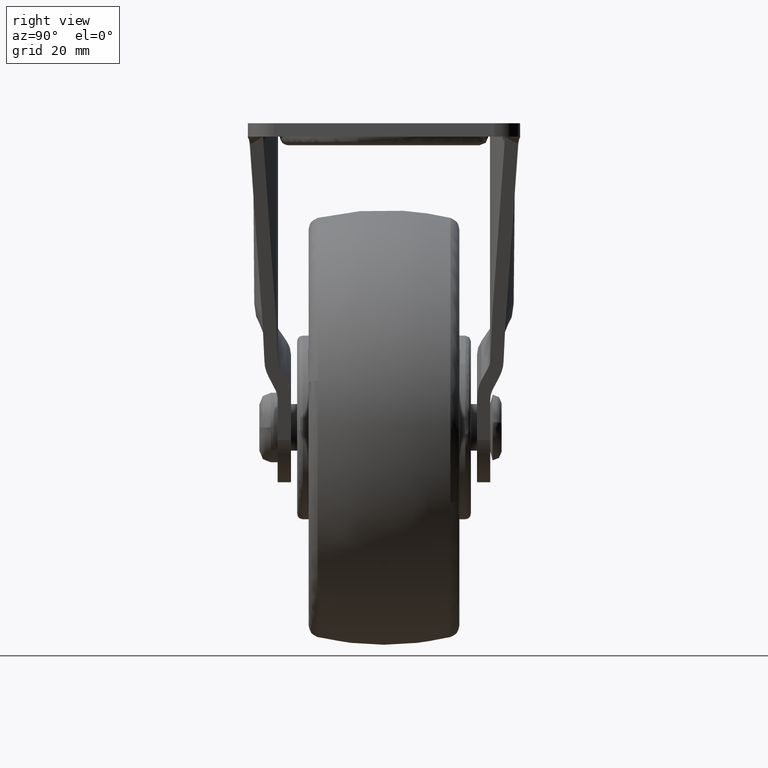
[diagram: clean part render]
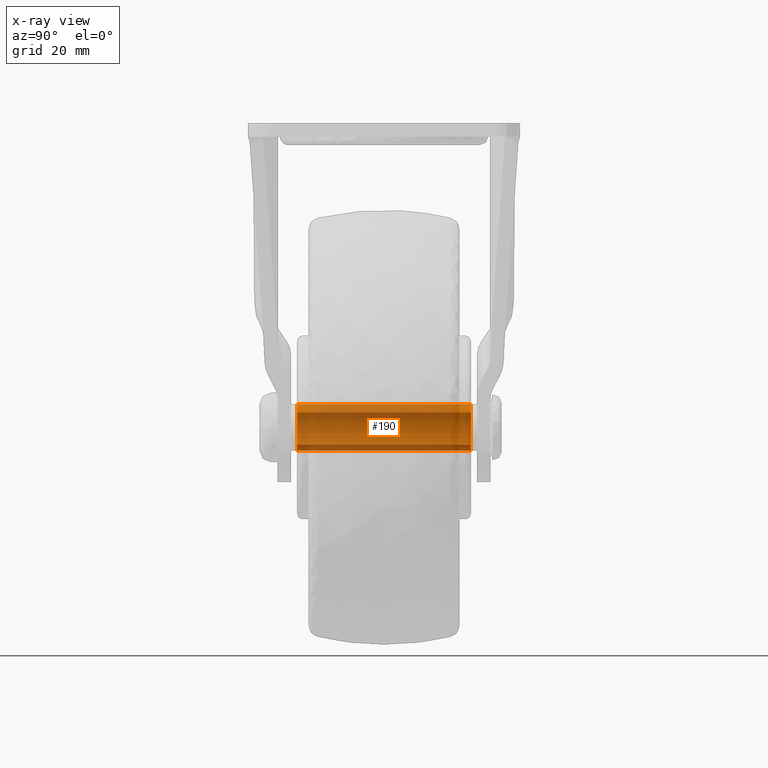
[diagram: x-ray — body ghosted, one internal face saturated and labeled with its STEP entity id]
A machine part, right view, then the same camera in x-ray: the body is ghosted and one INTERNAL B-rep face — a face not visible from any outside direction — is saturated and labeled: STEP entity #190.
In plain terms, the highlighted face is a freeform B-spline surface patch.
Its self-contained STEP definition (entity closure, byte-faithful):
#44=CARTESIAN_POINT('',(3.054222571761859,15.750000000000005,2.582968153528102));
#45=CARTESIAN_POINT('',(2.980299132926059,15.750000000000007,2.670378691349159));
#46=CARTESIAN_POINT('',(2.901497484049150,15.750000000000000,2.753418302775015));
#47=CARTESIAN_POINT('',(0.148079181274134,15.750000000000009,5.654915786824165));
#48=CARTESIAN_POINT('',(-2.753418302775015,15.750000000000000,2.901497484049150));
#49=CARTESIAN_POINT('',(-5.654915786824165,15.750000000000009,0.148079181274134));
#50=CARTESIAN_POINT('',(-2.901497484049150,15.750000000000000,-2.753418302775015));
#51=CARTESIAN_POINT('',(-0.148079181274134,15.750000000000009,-5.654915786824165));
#52=CARTESIAN_POINT('',(2.753418302775015,15.750000000000000,-2.901497484049150));
#53=CARTESIAN_POINT('',(3.054222571761859,-15.768750000000006,2.582968153528102));
#54=CARTESIAN_POINT('',(2.980299132926059,-15.768750000000006,2.670378691349159));
#55=CARTESIAN_POINT('',(2.901497484049150,-15.768750000000001,2.753418302775015));
#56=CARTESIAN_POINT('',(0.148079181274134,-15.768749999999997,5.654915786824165));
#57=CARTESIAN_POINT('',(-2.753418302775015,-15.768750000000001,2.901497484049150));
#58=CARTESIAN_POINT('',(-5.654915786824165,-15.768749999999997,0.148079181274134));
#59=CARTESIAN_POINT('',(-2.901497484049150,-15.768750000000001,-2.753418302775015));
#60=CARTESIAN_POINT('',(-0.148079181274134,-15.768749999999997,-5.654915786824165));
#61=CARTESIAN_POINT('',(2.753418302775015,-15.768750000000001,-2.901497484049150));
#69=(BOUNDED_SURFACE()B_SPLINE_SURFACE(2,1,((#44,#53),(#45,#54),(#46,#55),(#47,#56),(#48,#57),(#49,#58),(#50,#59),(#51,#60),(#52,#61)),.UNSPECIFIED.,.F.,.F.,.U.)B_SPLINE_SURFACE_WITH_KNOTS((3,2,2,2,3),(2,2),(0.0,0.265096679918781,6.892513677888300,13.519930675857820,20.147347673827340),(0.0,31.518750000000011),.UNSPECIFIED.)GEOMETRIC_REPRESENTATION_ITEM()RATIONAL_B_SPLINE_SURFACE(((0.977505800795127,0.977505800795127),(0.988284271247462,0.988284271247462),(1.0,1.0),(0.707106781186548,0.707106781186548),(1.0,1.0),(0.707106781186548,0.707106781186548),(1.0,1.0),(0.707106781186548,0.707106781186548),(1.0,1.0)))REPRESENTATION_ITEM('')SURFACE());
#70=CARTESIAN_POINT('',(3.054222909492389,-15.000000000001441,2.582968297111406));
#71=VERTEX_POINT('',#70);
#72=CARTESIAN_POINT('',(0.0,-15.0,4.0));
#73=VERTEX_POINT('',#72);
#74=CARTESIAN_POINT('',(3.054222909492389,-15.000000000001441,2.582968297111406));
#75=CARTESIAN_POINT('',(2.855561932839918,-15.000000000001330,2.817938760181309));
#76=CARTESIAN_POINT('',(2.350549701419603,-15.000000000001130,3.291648624417635));
#77=CARTESIAN_POINT('',(1.321150353535196,-15.000000000000581,3.848140701675783));
#78=CARTESIAN_POINT('',(0.470631135691064,-15.000000000000240,4.000321127501906));
#79=CARTESIAN_POINT('',(0.0,-15.0,4.0));
#80=B_SPLINE_CURVE_WITH_KNOTS('',3,(#74,#75,#76,#77,#78,#79),.UNSPECIFIED.,.F.,.U.,(4,1,1,4),(0.000000066988274,0.923109344674218,2.063406143314685,3.475233434031685),.UNSPECIFIED.);
#81=EDGE_CURVE('',#71,#73,#80,.T.);
#82=ORIENTED_EDGE('',*,*,#81,.T.);
#83=CARTESIAN_POINT('',(-3.999999999999747,-15.0,-0.000001422114586));
#84=VERTEX_POINT('',#83);
#85=CARTESIAN_POINT('',(0.0,-15.0,4.0));
#86=CARTESIAN_POINT('',(-0.261786649221330,-15.0,4.000030311106098));
#87=CARTESIAN_POINT('',(-0.818113472703123,-15.0,3.945210557005112));
#88=CARTESIAN_POINT('',(-1.540028983150977,-15.0,3.716530060783644));
#89=CARTESIAN_POINT('',(-2.205635413132823,-15.0,3.360714901780175));
#90=CARTESIAN_POINT('',(-2.775950278660583,-14.999999999999989,2.915668423866436));
#91=CARTESIAN_POINT('',(-3.334389285999332,-15.000000000000020,2.268301528082932));
#92=CARTESIAN_POINT('',(-3.847434797148639,-14.999999999999940,1.308753684857870));
#93=CARTESIAN_POINT('',(-4.000428423722541,-15.000000000000091,0.490933353977176));
#94=CARTESIAN_POINT('',(-3.999999999999747,-15.0,-0.000001422114586));
#95=B_SPLINE_CURVE_WITH_KNOTS('',3,(#85,#86,#87,#88,#89,#90,#91,#92,#93,#94),.UNSPECIFIED.,.F.,.U.,(4,1,1,1,1,1,1,4),(0.000000107845151,0.785384164561502,1.669014168319499,2.258107001564493,3.043504478465067,3.828876641769297,4.810686004064900,6.283343778887010),.UNSPECIFIED.);
#96=EDGE_CURVE('',#73,#84,#95,.T.);
#97=ORIENTED_EDGE('',*,*,#96,.T.);
#98=CARTESIAN_POINT('',(0.0,-15.0,-4.0));
#99=VERTEX_POINT('',#98);
#100=CARTESIAN_POINT('',(-3.999999999999747,-15.0,-0.000001422114586));
#101=CARTESIAN_POINT('',(-4.000131415905226,-14.999999999999989,-0.359986068289557));
#102=CARTESIAN_POINT('',(-3.924360075715298,-15.000000000000011,-0.916232165281375));
#103=CARTESIAN_POINT('',(-3.647958216249098,-14.999999999999989,-1.688616519746435));
#104=CARTESIAN_POINT('',(-3.226721670894381,-15.000000000000020,-2.432647580040876));
#105=CARTESIAN_POINT('',(-2.587996737392360,-15.0,-3.103422916757284));
#106=CARTESIAN_POINT('',(-1.865596583772531,-15.000000000000030,-3.560707182614698));
#107=CARTESIAN_POINT('',(-1.047070538680773,-14.999999999999959,-3.899852388201856));
#108=CARTESIAN_POINT('',(-0.425458006456396,-15.000000000000060,-4.000228060278216));
#109=CARTESIAN_POINT('',(0.0,-15.0,-4.0));
#110=B_SPLINE_CURVE_WITH_KNOTS('',3,(#100,#101,#102,#103,#104,#105,#106,#107,#108,#109),.UNSPECIFIED.,.F.,.U.,(4,1,1,1,1,1,1,4),(0.000000109794394,1.079929653352755,1.669013743901721,2.454466620509347,3.632522488957104,4.417966446222109,5.007046871232914,6.283342175792430),.UNSPECIFIED.);
#111=EDGE_CURVE('',#84,#99,#110,.T.);
#112=ORIENTED_EDGE('',*,*,#111,.T.);
#113=CARTESIAN_POINT('',(2.753418188427194,-14.999999999999289,-2.901497103101590));
#114=VERTEX_POINT('',#113);
#115=CARTESIAN_POINT('',(0.0,-15.0,-4.0));
#116=CARTESIAN_POINT('',(0.347986327807645,-14.999999999999901,-4.000093774275655));
#117=CARTESIAN_POINT('',(1.012257891496073,-14.999999999999760,-3.912790498811766));
#118=CARTESIAN_POINT('',(1.959101850552870,-14.999999999999501,-3.534990180155362));
#119=CARTESIAN_POINT('',(2.501074000855855,-14.999999999999350,-3.141120496033962));
#120=CARTESIAN_POINT('',(2.753418188427194,-14.999999999999289,-2.901497103101590));
#121=B_SPLINE_CURVE_WITH_KNOTS('',3,(#115,#116,#117,#118,#119,#120),.UNSPECIFIED.,.F.,.U.,(4,1,1,4),(0.000000036924206,1.043959769321017,1.992984422497684,3.036944154857505),.UNSPECIFIED.);
#122=EDGE_CURVE('',#99,#114,#121,.T.);
#123=ORIENTED_EDGE('',*,*,#122,.T.);
#124=CARTESIAN_POINT('',(2.753418186849582,15.0,-2.901497104598689));
#125=VERTEX_POINT('',#124);
#126=CARTESIAN_POINT('',(2.753418186849582,15.0,-2.901497104598689));
#127=CARTESIAN_POINT('',(2.753418188427194,-14.999999999999289,-2.901497103101590));
#128=QUASI_UNIFORM_CURVE('',1,(#126,#127),.UNSPECIFIED.,.F.,.U.);
#129=EDGE_CURVE('',#125,#114,#128,.T.);
#130=ORIENTED_EDGE('',*,*,#129,.F.);
#131=CARTESIAN_POINT('',(0.0,15.0,-4.0));
#132=VERTEX_POINT('',#131);
#133=CARTESIAN_POINT('',(0.0,15.0,-4.0));
#134=CARTESIAN_POINT('',(0.411281065418479,15.000000000000041,-4.000233382833497));
#135=CARTESIAN_POINT('',(1.012178015002485,14.999999999999920,-3.906442857973365));
#136=CARTESIAN_POINT('',(1.954805351464561,15.000000000000080,-3.530355462710295));
#137=CARTESIAN_POINT('',(2.455247859110659,14.999999999999931,-3.184780186021824));
#138=CARTESIAN_POINT('',(2.753418186849582,15.0,-2.901497104598689));
#139=B_SPLINE_CURVE_WITH_KNOTS('',3,(#133,#134,#135,#136,#137,#138),.UNSPECIFIED.,.F.,.U.,(4,1,1,4),(0.000000036924167,1.233770300398311,1.803173889217264,3.036944152682459),.UNSPECIFIED.);
#140=EDGE_CURVE('',#132,#125,#139,.T.);
#141=ORIENTED_EDGE('',*,*,#140,.F.);
#142=CARTESIAN_POINT('',(-3.999999999999747,15.0,-0.000001422114586));
#143=VERTEX_POINT('',#142);
#144=CARTESIAN_POINT('',(-3.999999999999747,15.0,-0.000001422114586));
#145=CARTESIAN_POINT('',(-4.000131415905226,14.999999999999989,-0.359986068289557));
#146=CARTESIAN_POINT('',(-3.924360075715298,15.000000000000011,-0.916232165281375));
#147=CARTESIAN_POINT('',(-3.647958216249098,14.999999999999989,-1.688616519746435));
#148=CARTESIAN_POINT('',(-3.226721670894381,15.000000000000020,-2.432647580040876));
#149=CARTESIAN_POINT('',(-2.587996737392360,15.0,-3.103422916757284));
#150=CARTESIAN_POINT('',(-1.865596583772531,15.000000000000030,-3.560707182614698));
#151=CARTESIAN_POINT('',(-1.047070538680773,14.999999999999959,-3.899852388201856));
#152=CARTESIAN_POINT('',(-0.425458006456396,15.000000000000060,-4.000228060278216));
#153=CARTESIAN_POINT('',(0.0,15.0,-4.0));
#154=B_SPLINE_CURVE_WITH_KNOTS('',3,(#144,#145,#146,#147,#148,#149,#150,#151,#152,#153),.UNSPECIFIED.,.F.,.U.,(4,1,1,1,1,1,1,4),(0.000000109794394,1.079929653352755,1.669013743901721,2.454466620509347,3.632522488957104,4.417966446222109,5.007046871232914,6.283342175792430),.UNSPECIFIED.);
#155=EDGE_CURVE('',#143,#132,#154,.T.);
#156=ORIENTED_EDGE('',*,*,#155,.F.);
#157=CARTESIAN_POINT('',(0.0,15.0,4.0));
#158=VERTEX_POINT('',#157);
#159=CARTESIAN_POINT('',(0.0,15.0,4.0));
#160=CARTESIAN_POINT('',(-0.261786649221330,15.0,4.000030311106098));
#161=CARTESIAN_POINT('',(-0.818113472703123,15.0,3.945210557005112));
#162=CARTESIAN_POINT('',(-1.540028983150977,15.0,3.716530060783644));
#163=CARTESIAN_POINT('',(-2.205635413132823,15.0,3.360714901780175));
#164=CARTESIAN_POINT('',(-2.775950278660583,14.999999999999989,2.915668423866436));
#165=CARTESIAN_POINT('',(-3.334389285999332,15.000000000000020,2.268301528082932));
#166=CARTESIAN_POINT('',(-3.847434797148639,14.999999999999940,1.308753684857870));
#167=CARTESIAN_POINT('',(-4.000428423722541,15.000000000000091,0.490933353977176));
#168=CARTESIAN_POINT('',(-3.999999999999747,15.0,-0.000001422114586));
#169=B_SPLINE_CURVE_WITH_KNOTS('',3,(#159,#160,#161,#162,#163,#164,#165,#166,#167,#168),.UNSPECIFIED.,.F.,.U.,(4,1,1,1,1,1,1,4),(0.000000107845151,0.785384164561502,1.669014168319499,2.258107001564493,3.043504478465067,3.828876641769297,4.810686004064900,6.283343778887010),.UNSPECIFIED.);
#170=EDGE_CURVE('',#158,#143,#169,.T.);
#171=ORIENTED_EDGE('',*,*,#170,.F.);
#172=CARTESIAN_POINT('',(3.054222908621160,15.0,2.582968298141589));
#173=VERTEX_POINT('',#172);
#174=CARTESIAN_POINT('',(3.054222908621160,15.0,2.582968298141589));
#175=CARTESIAN_POINT('',(2.703996158234705,15.0,2.998089279087090));
#176=CARTESIAN_POINT('',(2.020153838719956,15.000000000000011,3.533156689072683));
#177=CARTESIAN_POINT('',(0.923067551567393,15.000000000000011,3.928644467739570));
#178=CARTESIAN_POINT('',(0.307703197532418,15.0,4.000055843034038));
#179=CARTESIAN_POINT('',(0.0,15.0,4.0));
#180=B_SPLINE_CURVE_WITH_KNOTS('',3,(#174,#175,#176,#177,#178,#179),.UNSPECIFIED.,.F.,.U.,(4,1,1,4),(0.000000066988236,1.629023395057059,2.552124155354419,3.475233432682463),.UNSPECIFIED.);
#181=EDGE_CURVE('',#173,#158,#180,.T.);
#182=ORIENTED_EDGE('',*,*,#181,.F.);
#183=CARTESIAN_POINT('',(3.054222908621160,15.0,2.582968298141589));
#184=CARTESIAN_POINT('',(3.054222909492389,-15.000000000001441,2.582968297111406));
#185=QUASI_UNIFORM_CURVE('',1,(#183,#184),.UNSPECIFIED.,.F.,.U.);
#186=EDGE_CURVE('',#173,#71,#185,.T.);
#187=ORIENTED_EDGE('',*,*,#186,.T.);
#188=EDGE_LOOP('',(#82,#97,#112,#123,#130,#141,#156,#171,#182,#187));
#189=FACE_OUTER_BOUND('',#188,.T.);
#190=ADVANCED_FACE('',(#189),#69,.F.);